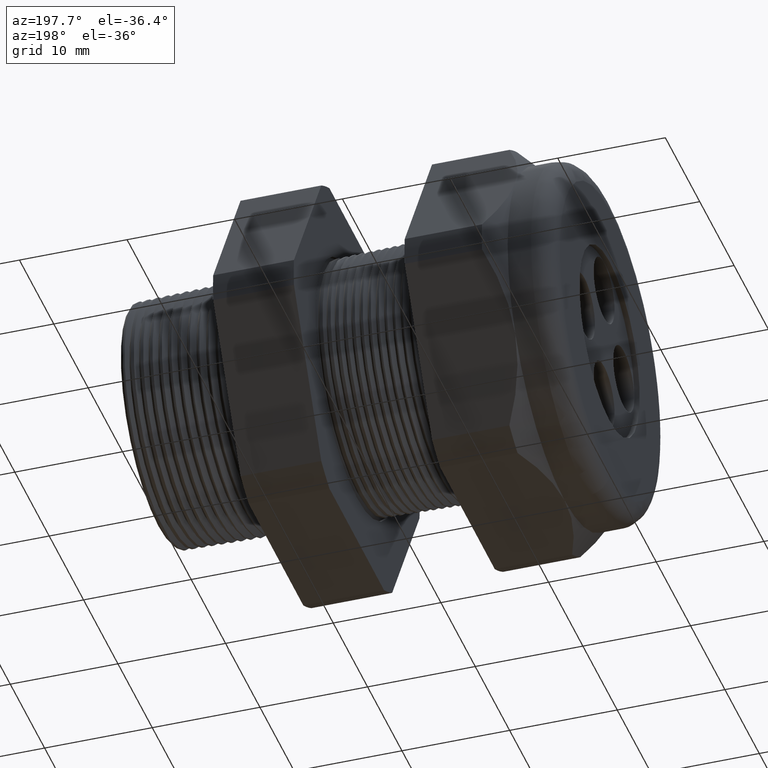
[diagram: clean part render]
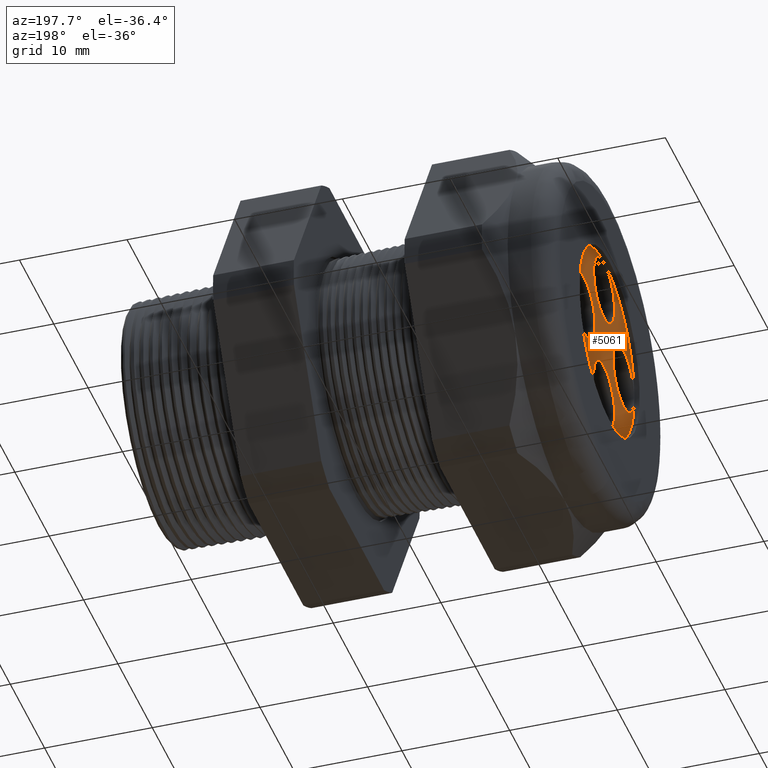
[diagram: same view with one face highlighted and labeled with its STEP entity id]
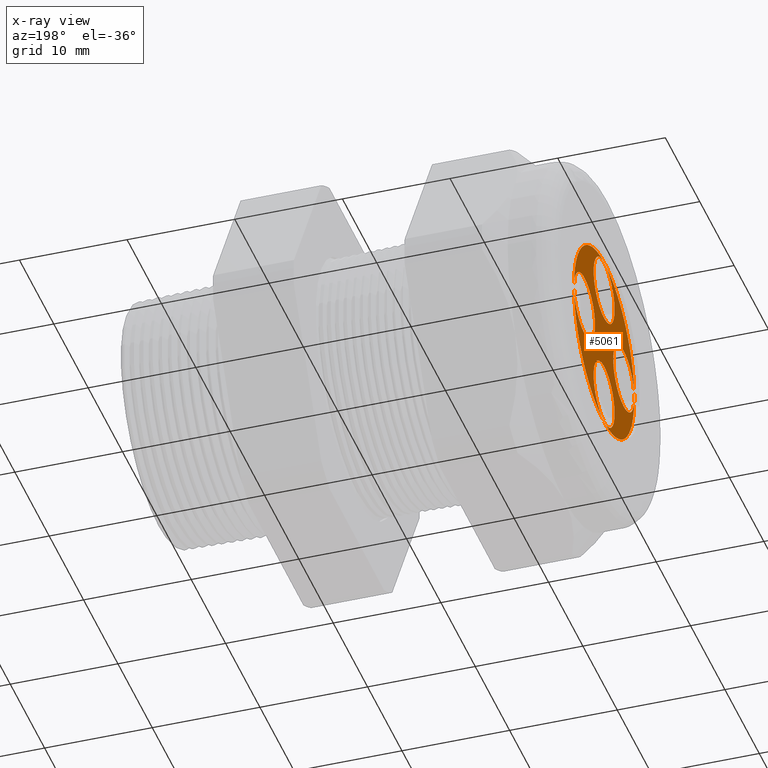
[diagram: x-ray of the same camera — body ghosted, the highlighted face saturated]
A machine part, auxiliary view. The second image highlights one B-rep face of the part: STEP entity #5061.
The next image is the same camera in x-ray: the body ghosted, the highlighted face saturated — about 0% of this face is hidden behind the body in this view.
In plain terms, the highlighted planar face has unit normal (-1, 0, 0).
Its self-contained STEP definition (entity closure, byte-faithful):
#1222 = VERTEX_POINT ( 'NONE', #2959 ) ;
#1223 = VERTEX_POINT ( 'NONE', #2958 ) ;
#1226 = VERTEX_POINT ( 'NONE', #3017 ) ;
#1230 = VERTEX_POINT ( 'NONE', #3009 ) ;
#1233 = EDGE_CURVE ( 'NONE', #1222, #1226, #3008, .T. ) ;
#1511 = VERTEX_POINT ( 'NONE', #2997 ) ;
#1622 = EDGE_CURVE ( 'NONE', #1511, #1230, #2992, .T. ) ;
#2958 = CARTESIAN_POINT ( 'NONE',  ( -1.509999999999999800, 0.2245199999999999400, -0.1200000000000023500 ) ) ;
#2959 = CARTESIAN_POINT ( 'NONE',  ( -1.509999999999999800, 4.225031457058367800E-017, -0.3449999999999999200 ) ) ;
#2988 = DIRECTION ( 'NONE',  ( 0.0000000000000000000, 0.0000000000000000000, 1.000000000000000000 ) ) ;
#2989 = DIRECTION ( 'NONE',  ( -1.000000000000000000, 0.0000000000000000000, 0.0000000000000000000 ) ) ;
#2990 = CARTESIAN_POINT ( 'NONE',  ( -1.509999999999999800, 0.0000000000000000000, -0.2245199999999999400 ) ) ;
#2991 = AXIS2_PLACEMENT_3D ( 'NONE', #2990, #2989, #2988 ) ;
#2992 = CIRCLE ( 'NONE', #2991, 0.1200000000000000000 ) ;
#2997 = CARTESIAN_POINT ( 'NONE',  ( -1.509999999999999800, 1.469576158976823700E-017, -0.3445199999999999400 ) ) ;
#3004 = DIRECTION ( 'NONE',  ( 0.0000000000000000000, 0.0000000000000000000, 1.000000000000000000 ) ) ;
#3005 = DIRECTION ( 'NONE',  ( -1.000000000000000000, 0.0000000000000000000, 0.0000000000000000000 ) ) ;
#3006 = CARTESIAN_POINT ( 'NONE',  ( -1.509999999999999800, 0.0000000000000000000, 0.0000000000000000000 ) ) ;
#3007 = AXIS2_PLACEMENT_3D ( 'NONE', #3006, #3005, #3004 ) ;
#3008 = CIRCLE ( 'NONE', #3007, 0.3449999999999999200 ) ;
#3009 = CARTESIAN_POINT ( 'NONE',  ( -1.509999999999999800, 0.0000000000000000000, -0.1045199999999999500 ) ) ;
#3017 = CARTESIAN_POINT ( 'NONE',  ( -1.509999999999999800, 0.0000000000000000000, 0.3449999999999999200 ) ) ;
#3211 = CARTESIAN_POINT ( 'NONE',  ( -1.509999999999999800, 1.582511450062324600E-015, 0.1045199999999999500 ) ) ;
#3212 = DIRECTION ( 'NONE',  ( 0.0000000000000000000, -6.982966722218764900E-015, -1.000000000000000000 ) ) ;
#3213 = DIRECTION ( 'NONE',  ( -1.000000000000000000, 0.0000000000000000000, 0.0000000000000000000 ) ) ;
#3214 = CARTESIAN_POINT ( 'NONE',  ( -1.509999999999999800, 1.567815688472556500E-015, 0.2245199999999999400 ) ) ;
#3215 = AXIS2_PLACEMENT_3D ( 'NONE', #3214, #3213, #3212 ) ;
#3216 = CIRCLE ( 'NONE', #3215, 0.1200000000000000000 ) ;
#3217 = CARTESIAN_POINT ( 'NONE',  ( -1.509999999999999800, 1.567815688472556500E-015, 0.3445199999999999400 ) ) ;
#3246 = DIRECTION ( 'NONE',  ( 0.0000000000000000000, 0.0000000000000000000, 1.000000000000000000 ) ) ;
#3247 = DIRECTION ( 'NONE',  ( -1.000000000000000000, 0.0000000000000000000, 0.0000000000000000000 ) ) ;
#3248 = CARTESIAN_POINT ( 'NONE',  ( -1.509999999999999800, 0.0000000000000000000, 0.0000000000000000000 ) ) ;
#3249 = AXIS2_PLACEMENT_3D ( 'NONE', #3248, #3247, #3246 ) ;
#3250 = CIRCLE ( 'NONE', #3249, 0.3449999999999999200 ) ;
#3251 = DIRECTION ( 'NONE',  ( 0.0000000000000000000, -1.000000000000000000, 1.047445008332814600E-014 ) ) ;
#3252 = DIRECTION ( 'NONE',  ( -1.000000000000000000, 0.0000000000000000000, 0.0000000000000000000 ) ) ;
#3253 = CARTESIAN_POINT ( 'NONE',  ( -1.509999999999999800, 0.2245199999999999400, -2.351723532708834800E-015 ) ) ;
#3254 = AXIS2_PLACEMENT_3D ( 'NONE', #3253, #3252, #3251 ) ;
#3255 = CIRCLE ( 'NONE', #3254, 0.1200000000000000000 ) ;
#3256 = DIRECTION ( 'NONE',  ( 0.0000000000000000000, -6.982966722218764900E-015, -1.000000000000000000 ) ) ;
#3257 = DIRECTION ( 'NONE',  ( -1.000000000000000000, 0.0000000000000000000, 0.0000000000000000000 ) ) ;
#3258 = CARTESIAN_POINT ( 'NONE',  ( -1.509999999999999800, 1.567815688472556500E-015, 0.2245199999999999400 ) ) ;
#3259 = AXIS2_PLACEMENT_3D ( 'NONE', #3258, #3257, #3256 ) ;
#3260 = CIRCLE ( 'NONE', #3259, 0.1200000000000000000 ) ;
#3319 = DIRECTION ( 'NONE',  ( 0.0000000000000000000, 0.0000000000000000000, 1.000000000000000000 ) ) ;
#3320 = DIRECTION ( 'NONE',  ( -1.000000000000000000, 0.0000000000000000000, 0.0000000000000000000 ) ) ;
#3321 = CARTESIAN_POINT ( 'NONE',  ( -1.509999999999999800, 0.0000000000000000000, -0.2245199999999999400 ) ) ;
#3322 = AXIS2_PLACEMENT_3D ( 'NONE', #3321, #3320, #3319 ) ;
#3327 = CIRCLE ( 'NONE', #3322, 0.1200000000000000000 ) ;
#3330 = DIRECTION ( 'NONE',  ( 0.0000000000000000000, 1.000000000000000000, -3.491483361109382500E-015 ) ) ;
#3331 = DIRECTION ( 'NONE',  ( -1.000000000000000000, 0.0000000000000000000, 0.0000000000000000000 ) ) ;
#3332 = CARTESIAN_POINT ( 'NONE',  ( -1.509999999999999800, -0.2245199999999999400, 7.839078442362782600E-016 ) ) ;
#3333 = AXIS2_PLACEMENT_3D ( 'NONE', #3332, #3331, #3330 ) ;
#3334 = CIRCLE ( 'NONE', #3333, 0.1200000000000000000 ) ;
#3335 = CARTESIAN_POINT ( 'NONE',  ( -1.509999999999999800, -0.2245199999999999400, -0.1199999999999992200 ) ) ;
#3349 = CARTESIAN_POINT ( 'NONE',  ( -1.509999999999999800, 0.2245199999999999400, 0.1199999999999976500 ) ) ;
#3350 = DIRECTION ( 'NONE',  ( 0.0000000000000000000, -1.000000000000000000, 1.047445008332814600E-014 ) ) ;
#3351 = DIRECTION ( 'NONE',  ( -1.000000000000000000, 0.0000000000000000000, 0.0000000000000000000 ) ) ;
#3352 = CARTESIAN_POINT ( 'NONE',  ( -1.509999999999999800, 0.2245199999999999400, -2.351723532708834800E-015 ) ) ;
#3353 = AXIS2_PLACEMENT_3D ( 'NONE', #3352, #3351, #3350 ) ;
#3354 = CIRCLE ( 'NONE', #3353, 0.1200000000000000000 ) ;
#3355 = DIRECTION ( 'NONE',  ( 0.0000000000000000000, 0.0000000000000000000, 1.000000000000000000 ) ) ;
#3356 = DIRECTION ( 'NONE',  ( -1.000000000000000000, 0.0000000000000000000, 0.0000000000000000000 ) ) ;
#3357 = CARTESIAN_POINT ( 'NONE',  ( -1.509999999999999800, 0.0000000000000000000, 0.0000000000000000000 ) ) ;
#3358 = AXIS2_PLACEMENT_3D ( 'NONE', #3357, #3356, #3355 ) ;
#3359 = PLANE ( 'NONE',  #3358 ) ;
#3360 = FACE_OUTER_BOUND ( 'NONE', #5050, .T. ) ;
#3361 = FACE_BOUND ( 'NONE', #5031, .T. ) ;
#3362 = FACE_BOUND ( 'NONE', #5059, .T. ) ;
#3363 = FACE_BOUND ( 'NONE', #4992, .T. ) ;
#3364 = FACE_BOUND ( 'NONE', #5060, .T. ) ;
#3365 = DIRECTION ( 'NONE',  ( 0.0000000000000000000, 1.000000000000000000, -3.491483361109382500E-015 ) ) ;
#3366 = DIRECTION ( 'NONE',  ( -1.000000000000000000, 0.0000000000000000000, 0.0000000000000000000 ) ) ;
#3367 = AXIS2_PLACEMENT_3D ( 'NONE', #3372, #3366, #3365 ) ;
#3368 = CIRCLE ( 'NONE', #3367, 0.1200000000000000000 ) ;
#3372 = CARTESIAN_POINT ( 'NONE',  ( -1.509999999999999800, -0.2245199999999999400, 7.839078442362782600E-016 ) ) ;
#3430 = CARTESIAN_POINT ( 'NONE',  ( -1.509999999999999800, -0.2245199999999999400, 0.1200000000000007900 ) ) ;
#4975 = VERTEX_POINT ( 'NONE', #3217 ) ;
#4977 = EDGE_CURVE ( 'NONE', #4979, #4975, #3216, .T. ) ;
#4979 = VERTEX_POINT ( 'NONE', #3211 ) ;
#4988 = EDGE_CURVE ( 'NONE', #4975, #4979, #3260, .T. ) ;
#4989 = ORIENTED_EDGE ( 'NONE', *, *, #4988, .F. ) ;
#4990 = EDGE_CURVE ( 'NONE', #5064, #1223, #3255, .T. ) ;
#4991 = ORIENTED_EDGE ( 'NONE', *, *, #4990, .F. ) ;
#4992 = EDGE_LOOP ( 'NONE', ( #4989, #4994 ) ) ;
#4994 = ORIENTED_EDGE ( 'NONE', *, *, #4977, .F. ) ;
#4996 = EDGE_CURVE ( 'NONE', #1226, #1222, #3250, .T. ) ;
#5026 = VERTEX_POINT ( 'NONE', #3335 ) ;
#5028 = EDGE_CURVE ( 'NONE', #5026, #5092, #3334, .T. ) ;
#5031 = EDGE_LOOP ( 'NONE', ( #5049, #5058 ) ) ;
#5039 = EDGE_CURVE ( 'NONE', #1230, #1511, #3327, .T. ) ;
#5040 = ORIENTED_EDGE ( 'NONE', *, *, #1233, .T. ) ;
#5041 = ORIENTED_EDGE ( 'NONE', *, *, #5056, .F. ) ;
#5048 = ORIENTED_EDGE ( 'NONE', *, *, #4996, .T. ) ;
#5049 = ORIENTED_EDGE ( 'NONE', *, *, #5039, .F. ) ;
#5050 = EDGE_LOOP ( 'NONE', ( #5048, #5040 ) ) ;
#5056 = EDGE_CURVE ( 'NONE', #5092, #5026, #3368, .T. ) ;
#5057 = ORIENTED_EDGE ( 'NONE', *, *, #5028, .F. ) ;
#5058 = ORIENTED_EDGE ( 'NONE', *, *, #1622, .F. ) ;
#5059 = EDGE_LOOP ( 'NONE', ( #5041, #5057 ) ) ;
#5060 = EDGE_LOOP ( 'NONE', ( #4991, #5062 ) ) ;
#5061 = ADVANCED_FACE ( 'NONE', ( #3364, #3363, #3362, #3361, #3360 ), #3359, .T. ) ;
#5062 = ORIENTED_EDGE ( 'NONE', *, *, #5063, .F. ) ;
#5063 = EDGE_CURVE ( 'NONE', #1223, #5064, #3354, .T. ) ;
#5064 = VERTEX_POINT ( 'NONE', #3349 ) ;
#5092 = VERTEX_POINT ( 'NONE', #3430 ) ;